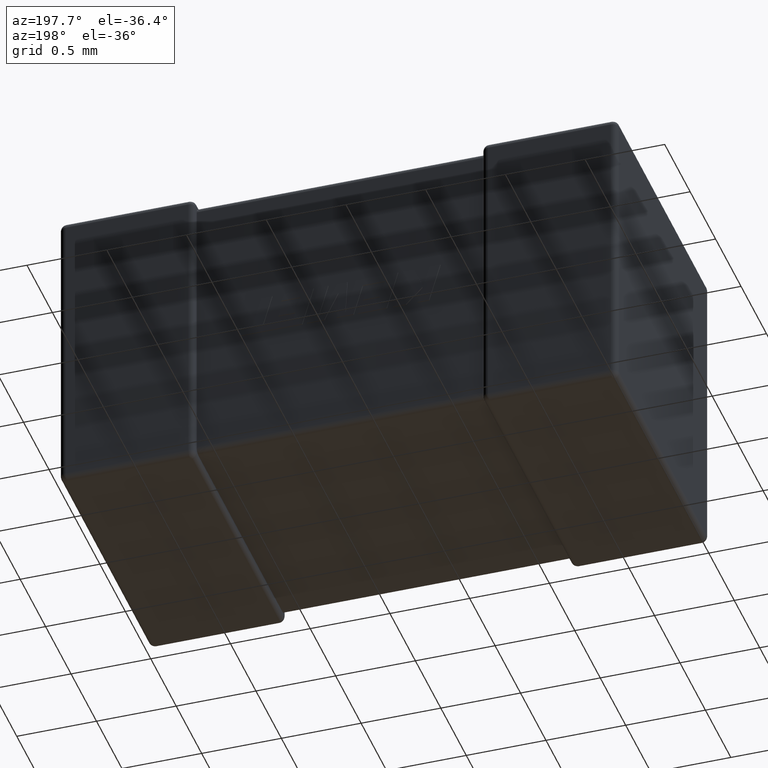
[diagram: clean part render]
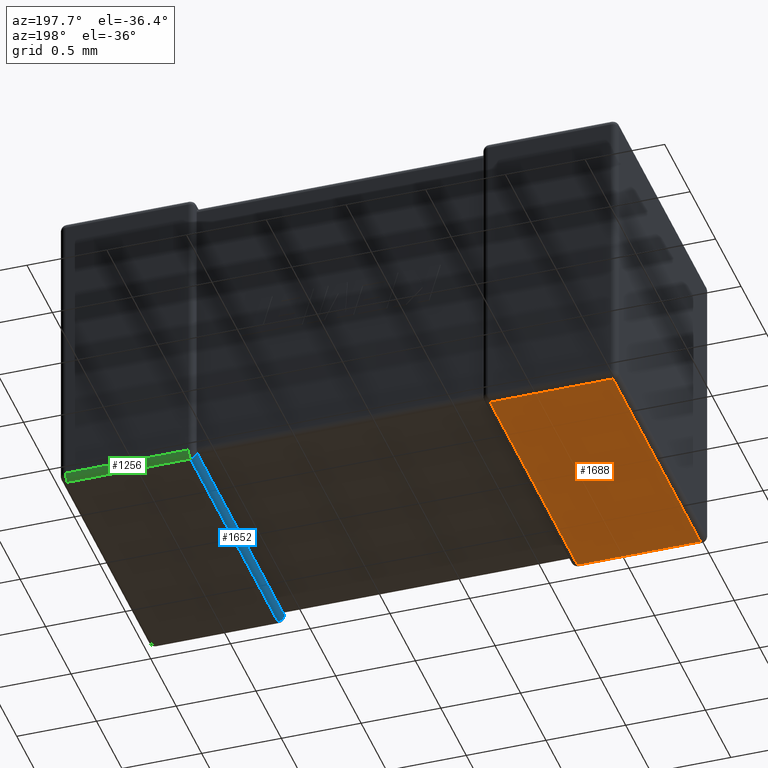
[diagram: same view with three faces highlighted in distinct colors, each labeled with its STEP entity id]
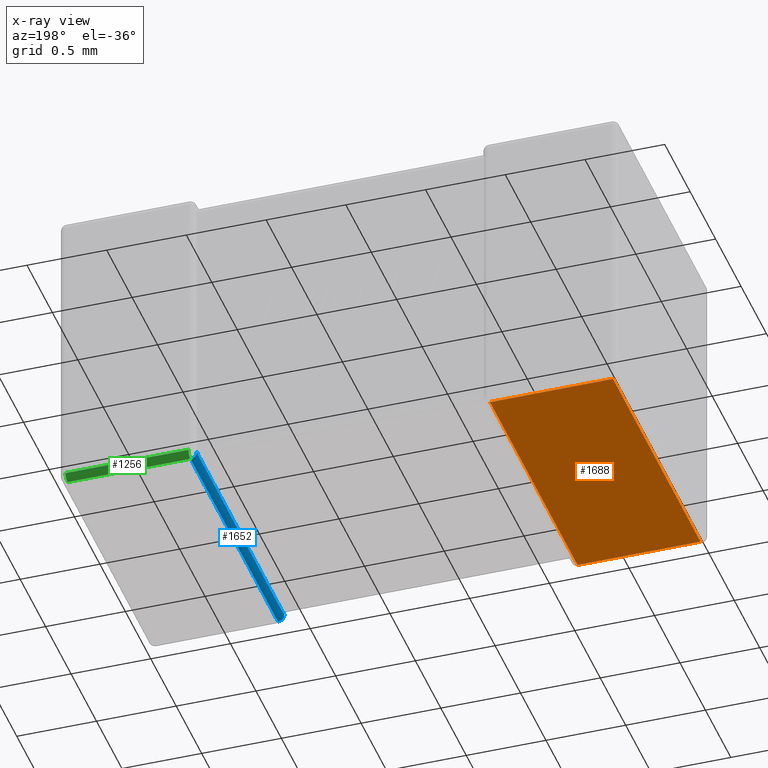
[diagram: x-ray of the same camera — body ghosted, the three highlighted faces saturated]
A machine part, auxiliary view with three faces highlighted in distinct colors.
The next image is the same camera in x-ray (body ghosted, the three faces saturated) — at least one of them is partly hidden behind the body in this view.
Their STEP definitions:

[orange] entity #1688 — the highlighted planar face has unit normal (0, 0, 1).
#38 = LINE ( 'NONE', #503, #444 ) ;
#44 = VERTEX_POINT ( 'NONE', #4340 ) ;
#287 = VERTEX_POINT ( 'NONE', #3320 ) ;
#444 = VECTOR ( 'NONE', #1570, 1000.000000000000000 ) ;
#447 = VERTEX_POINT ( 'NONE', #1333 ) ;
#503 = CARTESIAN_POINT ( 'NONE',  ( 0.03951999999999991600, 1.800000000000000000, -1.900000000000000100 ) ) ;
#564 = LINE ( 'NONE', #1921, #2812 ) ;
#692 = EDGE_CURVE ( 'NONE', #287, #447, #3251, .T. ) ;
#846 = DIRECTION ( 'NONE',  ( 1.000000000000000000, 0.0000000000000000000, -0.0000000000000000000 ) ) ;
#847 = DIRECTION ( 'NONE',  ( -5.486853099623009500E-015, -1.000000000000000000, 0.0000000000000000000 ) ) ;
#948 = ORIENTED_EDGE ( 'NONE', *, *, #4050, .T. ) ;
#1094 = CARTESIAN_POINT ( 'NONE',  ( 0.03951999999999991600, 1.760480000000000000, -1.900000000000000100 ) ) ;
#1296 = ORIENTED_EDGE ( 'NONE', *, *, #3716, .T. ) ;
#1333 = CARTESIAN_POINT ( 'NONE',  ( 0.03951999999999991600, 0.03952000000000000000, -1.900000000000000100 ) ) ;
#1570 = DIRECTION ( 'NONE',  ( 0.0000000000000000000, 1.000000000000000000, -0.0000000000000000000 ) ) ;
#1688 = ADVANCED_FACE ( 'NONE', ( #4101 ), #2255, .F. ) ;
#1921 = CARTESIAN_POINT ( 'NONE',  ( 3.500000000000000000, 1.760480000000000000, -1.900000000000000100 ) ) ;
#1951 = VECTOR ( 'NONE', #4026, 1000.000000000000000 ) ;
#1996 = EDGE_LOOP ( 'NONE', ( #948, #1296, #2239, #2167 ) ) ;
#2132 = VERTEX_POINT ( 'NONE', #1094 ) ;
#2167 = ORIENTED_EDGE ( 'NONE', *, *, #2211, .T. ) ;
#2207 = DIRECTION ( 'NONE',  ( 0.0000000000000000000, 0.0000000000000000000, 1.000000000000000000 ) ) ;
#2211 = EDGE_CURVE ( 'NONE', #447, #2132, #38, .T. ) ;
#2239 = ORIENTED_EDGE ( 'NONE', *, *, #692, .T. ) ;
#2255 = PLANE ( 'NONE',  #3602 ) ;
#2381 = DIRECTION ( 'NONE',  ( 1.000000000000000000, -0.0000000000000000000, -0.0000000000000000000 ) ) ;
#2812 = VECTOR ( 'NONE', #2381, 1000.000000000000000 ) ;
#3251 = LINE ( 'NONE', #3682, #1951 ) ;
#3320 = CARTESIAN_POINT ( 'NONE',  ( 0.8104799999999904300, 0.03952000000000000000, -1.900000000000000100 ) ) ;
#3572 = VECTOR ( 'NONE', #847, 1000.000000000000000 ) ;
#3602 = AXIS2_PLACEMENT_3D ( 'NONE', #3724, #2207, #846 ) ;
#3682 = CARTESIAN_POINT ( 'NONE',  ( 3.500000000000000000, 0.03952000000000000000, -1.900000000000000100 ) ) ;
#3716 = EDGE_CURVE ( 'NONE', #44, #287, #3983, .T. ) ;
#3724 = CARTESIAN_POINT ( 'NONE',  ( 3.500000000000000000, 0.0000000000000000000, -1.900000000000000100 ) ) ;
#3983 = LINE ( 'NONE', #4392, #3572 ) ;
#4026 = DIRECTION ( 'NONE',  ( -1.000000000000000000, -0.0000000000000000000, 0.0000000000000000000 ) ) ;
#4050 = EDGE_CURVE ( 'NONE', #2132, #44, #564, .T. ) ;
#4101 = FACE_OUTER_BOUND ( 'NONE', #1996, .T. ) ;
#4340 = CARTESIAN_POINT ( 'NONE',  ( 0.8104799999999998700, 1.760480000000000000, -1.900000000000000100 ) ) ;
#4392 = CARTESIAN_POINT ( 'NONE',  ( 0.8104799999999902100, 1.475700114849813200E-014, -1.900000000000000100 ) ) ;

[blue] entity #1652 — the highlighted cylindrical surface (edge-blend (fillet) strip) has radius 0.0395 mm, axis along (0, 1, 0).
#21 = LINE ( 'NONE', #365, #809 ) ;
#81 = CARTESIAN_POINT ( 'NONE',  ( 2.649980868571750300, 1.729787618139186500, -1.859730029434474700 ) ) ;
#113 = ORIENTED_EDGE ( 'NONE', *, *, #4445, .T. ) ;
#114 = CARTESIAN_POINT ( 'NONE',  ( 2.650060628212611600, 1.733928030680474100, -1.858291763690861400 ) ) ;
#121 = DIRECTION ( 'NONE',  ( 0.0000000000000000000, 0.0000000000000000000, 1.000000000000000000 ) ) ;
#249 = CARTESIAN_POINT ( 'NONE',  ( 2.649999999999999900, 0.04345027698197012600, -1.856549723018030100 ) ) ;
#365 = CARTESIAN_POINT ( 'NONE',  ( 2.650000000000000400, 0.0000000000000000000, -1.860480000000000400 ) ) ;
#383 = CARTESIAN_POINT ( 'NONE',  ( 2.689519999999999900, 1.760480000000000000, -1.900000000000000100 ) ) ;
#407 = CARTESIAN_POINT ( 'NONE',  ( 2.650000000000000400, 1.720959999999999600, -1.860480000000000400 ) ) ;
#411 = CARTESIAN_POINT ( 'NONE',  ( 2.650002967756881900, 0.07287186967079015100, -1.859995683268541800 ) ) ;
#473 = CARTESIAN_POINT ( 'NONE',  ( 2.651401832367206600, 1.747823300596617900, -1.849986419388551400 ) ) ;
#487 = CARTESIAN_POINT ( 'NONE',  ( 2.650000000000000400, 1.725343832337306300, -1.860480000000000400 ) ) ;
#500 = CIRCLE ( 'NONE', #1648, 0.03951999999999991600 ) ;
#582 = CARTESIAN_POINT ( 'NONE',  ( 2.650000000000000400, 1.760480000000000000, -1.860480000000000400 ) ) ;
#625 = AXIS2_PLACEMENT_3D ( 'NONE', #1802, #1816, #121 ) ;
#809 = VECTOR ( 'NONE', #2700, 1000.000000000000000 ) ;
#819 = VERTEX_POINT ( 'NONE', #878 ) ;
#878 = CARTESIAN_POINT ( 'NONE',  ( 2.649999999999999900, 0.03951999999999991600, -1.860480000000000400 ) ) ;
#929 = CARTESIAN_POINT ( 'NONE',  ( 2.651733143372243500, 0.05109514000750755400, -1.848904859992492700 ) ) ;
#954 = VERTEX_POINT ( 'NONE', #3077 ) ;
#983 = AXIS2_PLACEMENT_3D ( 'NONE', #3082, #1959, #2664 ) ;
#1073 = EDGE_CURVE ( 'NONE', #2394, #1455, #1824, .T. ) ;
#1206 = CARTESIAN_POINT ( 'NONE',  ( 2.651733143372243500, 1.748904859992492600, -1.848904859992492700 ) ) ;
#1291 = CARTESIAN_POINT ( 'NONE',  ( 2.649999999999999900, 1.756549723018030000, -1.856549723018030100 ) ) ;
#1312 = DIRECTION ( 'NONE',  ( 0.0000000000000000000, 1.000000000000000000, 0.0000000000000000000 ) ) ;
#1445 = EDGE_CURVE ( 'NONE', #1955, #3532, #1963, .T. ) ;
#1455 = VERTEX_POINT ( 'NONE', #4617 ) ;
#1467 = CARTESIAN_POINT ( 'NONE',  ( 2.650855364892457100, 0.05396063360370658600, -1.851770353588691800 ) ) ;
#1493 = VECTOR ( 'NONE', #3858, 1000.000000000000000 ) ;
#1633 = CARTESIAN_POINT ( 'NONE',  ( 2.689519999999999900, 0.03952000000000000000, -1.900000000000000100 ) ) ;
#1646 = CARTESIAN_POINT ( 'NONE',  ( 2.649999999999999900, 0.03951999999999991600, -1.860480000000000400 ) ) ;
#1648 = AXIS2_PLACEMENT_3D ( 'NONE', #1986, #1312, #1657 ) ;
#1652 = ADVANCED_FACE ( 'NONE', ( #2377 ), #2437, .T. ) ;
#1657 = DIRECTION ( 'NONE',  ( 0.0000000000000000000, 0.0000000000000000000, -1.000000000000000000 ) ) ;
#1792 = B_SPLINE_CURVE_WITH_KNOTS ( 'NONE', 3,
 ( #407, #487, #81, #114, #2218, #3369, #2637, #4072, #473, #1206 ),
 .UNSPECIFIED., .F., .F.,
 ( 4, 3, 3, 4 ),
 ( 4.336808689942017300E-019, 1.315149701192693200E-005, 2.633015284244883800E-005, 3.096473829575132700E-005 ),
 .UNSPECIFIED. ) ;
#1801 = CARTESIAN_POINT ( 'NONE',  ( 2.650442899009865600, 0.05739494176754507400, -1.854283741501644200 ) ) ;
#1802 = CARTESIAN_POINT ( 'NONE',  ( 2.689519999999999900, 0.0000000000000000000, -1.860480000000000400 ) ) ;
#1816 = DIRECTION ( 'NONE',  ( 0.0000000000000000000, 1.000000000000000000, 0.0000000000000000000 ) ) ;
#1824 = B_SPLINE_CURVE_WITH_KNOTS ( 'NONE', 3,
 ( #3968, #1467, #1801, #4006, #2540, #3583, #411, #4672, #3599, #3954 ),
 .UNSPECIFIED., .F., .F.,
 ( 4, 3, 3, 4 ),
 ( 0.0000000000000000000, 1.243918885754308100E-005, 2.481276825204882900E-005, 3.092983972412733100E-005 ),
 .UNSPECIFIED. ) ;
#1831 = VERTEX_POINT ( 'NONE', #1633 ) ;
#1834 = EDGE_CURVE ( 'NONE', #819, #2394, #4614, .T. ) ;
#1843 = ORIENTED_EDGE ( 'NONE', *, *, #1445, .F. ) ;
#1955 = VERTEX_POINT ( 'NONE', #582 ) ;
#1959 = DIRECTION ( 'NONE',  ( 0.0000000000000000000, 1.000000000000000000, 0.0000000000000000000 ) ) ;
#1963 =( BOUNDED_CURVE ( )  B_SPLINE_CURVE ( 3, ( #3905, #1291, #2480, #4179 ),
 .UNSPECIFIED., .F., .F. ) 
 B_SPLINE_CURVE_WITH_KNOTS ( ( 4, 4 ),
 ( 1.570796326794896600, 1.868047688116099400 ),
 .UNSPECIFIED. ) 
 CURVE ( )  GEOMETRIC_REPRESENTATION_ITEM ( )  RATIONAL_B_SPLINE_CURVE ( ( 1.000000000000000000, 0.9926503465430340800, 0.9926503465430340800, 1.000000000000000000 ) ) 
 REPRESENTATION_ITEM ( '' )  );
#1986 = CARTESIAN_POINT ( 'NONE',  ( 2.689519999999999900, 0.03952000000000000000, -1.860480000000000400 ) ) ;
#2006 = CARTESIAN_POINT ( 'NONE',  ( 2.650581991896165900, 0.04733722470322925000, -1.852662775296771300 ) ) ;
#2053 = ORIENTED_EDGE ( 'NONE', *, *, #1073, .T. ) ;
#2122 = CARTESIAN_POINT ( 'NONE',  ( 2.651733143372243500, 1.748904859992492600, -1.848904859992492700 ) ) ;
#2125 = ORIENTED_EDGE ( 'NONE', *, *, #2181, .T. ) ;
#2181 = EDGE_CURVE ( 'NONE', #954, #3532, #1792, .T. ) ;
#2218 = CARTESIAN_POINT ( 'NONE',  ( 2.650140473378203700, 1.738072882906634500, -1.856851955722505600 ) ) ;
#2274 = EDGE_CURVE ( 'NONE', #3528, #1955, #2447, .T. ) ;
#2330 = CARTESIAN_POINT ( 'NONE',  ( 2.651733143372243500, 0.05109514000750755400, -1.848904859992492700 ) ) ;
#2377 = FACE_OUTER_BOUND ( 'NONE', #2632, .T. ) ;
#2394 = VERTEX_POINT ( 'NONE', #2330 ) ;
#2437 = CYLINDRICAL_SURFACE ( 'NONE', #625, 0.03951999999999991600 ) ;
#2447 = CIRCLE ( 'NONE', #983, 0.03951999999999991600 ) ;
#2480 = CARTESIAN_POINT ( 'NONE',  ( 2.650581991896166400, 1.752662775296770700, -1.852662775296771000 ) ) ;
#2528 = ORIENTED_EDGE ( 'NONE', *, *, #4470, .F. ) ;
#2540 = CARTESIAN_POINT ( 'NONE',  ( 2.650030283367744500, 0.06476057441571936300, -1.858040471883658100 ) ) ;
#2632 = EDGE_LOOP ( 'NONE', ( #113, #4372, #2053, #3357, #2125, #1843, #3953, #2528 ) ) ;
#2637 = CARTESIAN_POINT ( 'NONE',  ( 2.650925292708250900, 1.745448685275966700, -1.851978296108179000 ) ) ;
#2664 = DIRECTION ( 'NONE',  ( 0.0000000000000000000, 0.0000000000000000000, 1.000000000000000000 ) ) ;
#2700 = DIRECTION ( 'NONE',  ( -0.0000000000000000000, 1.000000000000000000, -0.0000000000000000000 ) ) ;
#2760 = CARTESIAN_POINT ( 'NONE',  ( 2.689519999999999900, 0.0000000000000000000, -1.900000000000000100 ) ) ;
#2896 = EDGE_CURVE ( 'NONE', #1455, #954, #21, .T. ) ;
#3077 = CARTESIAN_POINT ( 'NONE',  ( 2.650000000000000400, 1.720959999999999600, -1.860480000000000400 ) ) ;
#3082 = CARTESIAN_POINT ( 'NONE',  ( 2.689519999999999900, 1.760480000000000000, -1.860480000000000400 ) ) ;
#3185 = LINE ( 'NONE', #2760, #1493 ) ;
#3357 = ORIENTED_EDGE ( 'NONE', *, *, #2896, .T. ) ;
#3369 = CARTESIAN_POINT ( 'NONE',  ( 2.650331769745486500, 1.742035877948573400, -1.854672678941348600 ) ) ;
#3528 = VERTEX_POINT ( 'NONE', #383 ) ;
#3532 = VERTEX_POINT ( 'NONE', #2122 ) ;
#3583 = CARTESIAN_POINT ( 'NONE',  ( 2.650010872113068800, 0.06879027762544633100, -1.859350740242614600 ) ) ;
#3599 = CARTESIAN_POINT ( 'NONE',  ( 2.649999999999937300, 0.07697762803058405500, -1.860480000000003900 ) ) ;
#3858 = DIRECTION ( 'NONE',  ( 0.0000000000000000000, 1.000000000000000000, 0.0000000000000000000 ) ) ;
#3905 = CARTESIAN_POINT ( 'NONE',  ( 2.650000000000000400, 1.760480000000000000, -1.860480000000000400 ) ) ;
#3953 = ORIENTED_EDGE ( 'NONE', *, *, #2274, .F. ) ;
#3954 = CARTESIAN_POINT ( 'NONE',  ( 2.650000000000000400, 0.07903999999999988800, -1.860480000000000400 ) ) ;
#3968 = CARTESIAN_POINT ( 'NONE',  ( 2.651733143372243500, 0.05109514000750755400, -1.848904859992492700 ) ) ;
#4006 = CARTESIAN_POINT ( 'NONE',  ( 2.650236238407553300, 0.06108405561611041800, -1.856165318650492300 ) ) ;
#4072 = CARTESIAN_POINT ( 'NONE',  ( 2.651136953244996900, 1.746665751297073400, -1.851017432666583100 ) ) ;
#4179 = CARTESIAN_POINT ( 'NONE',  ( 2.651733143372243500, 1.748904859992492600, -1.848904859992492700 ) ) ;
#4372 = ORIENTED_EDGE ( 'NONE', *, *, #1834, .T. ) ;
#4445 = EDGE_CURVE ( 'NONE', #1831, #819, #500, .T. ) ;
#4470 = EDGE_CURVE ( 'NONE', #1831, #3528, #3185, .T. ) ;
#4614 =( BOUNDED_CURVE ( )  B_SPLINE_CURVE ( 3, ( #1646, #249, #2006, #929 ),
 .UNSPECIFIED., .F., .F. ) 
 B_SPLINE_CURVE_WITH_KNOTS ( ( 4, 4 ),
 ( 1.570796326794895700, 1.868047688116099700 ),
 .UNSPECIFIED. ) 
 CURVE ( )  GEOMETRIC_REPRESENTATION_ITEM ( )  RATIONAL_B_SPLINE_CURVE ( ( 1.000000000000000000, 0.9926503465430338600, 0.9926503465430338600, 1.000000000000000000 ) ) 
 REPRESENTATION_ITEM ( '' )  );
#4617 = CARTESIAN_POINT ( 'NONE',  ( 2.650000000000000400, 0.07903999999999988800, -1.860480000000000400 ) ) ;
#4672 = CARTESIAN_POINT ( 'NONE',  ( 2.649999022748232000, 0.07490896359017601400, -1.860317569802489900 ) ) ;

[green] entity #1256 — the highlighted cylindrical surface (edge-blend (fillet) strip) has radius 0.0395 mm, axis along (-1, 0, 0).
#7 = CARTESIAN_POINT ( 'NONE',  ( 3.500000000000000000, 1.760480000000000000, -1.900000000000000100 ) ) ;
#72 = CARTESIAN_POINT ( 'NONE',  ( 3.500000000000000000, 1.760480000000000000, -1.860480000000000400 ) ) ;
#145 = FACE_OUTER_BOUND ( 'NONE', #4339, .T. ) ;
#264 = AXIS2_PLACEMENT_3D ( 'NONE', #3661, #3693, #4082 ) ;
#357 = CARTESIAN_POINT ( 'NONE',  ( 3.500000000000000000, 1.800000000000000000, -1.860480000000000400 ) ) ;
#383 = CARTESIAN_POINT ( 'NONE',  ( 2.689519999999999900, 1.760480000000000000, -1.900000000000000100 ) ) ;
#574 = VERTEX_POINT ( 'NONE', #1440 ) ;
#779 = CIRCLE ( 'NONE', #2067, 0.03951999999999991600 ) ;
#1040 = DIRECTION ( 'NONE',  ( 0.0000000000000000000, 0.0000000000000000000, 1.000000000000000000 ) ) ;
#1103 = DIRECTION ( 'NONE',  ( 1.000000000000000000, -0.0000000000000000000, -0.0000000000000000000 ) ) ;
#1138 = EDGE_CURVE ( 'NONE', #3528, #4263, #1945, .T. ) ;
#1256 = ADVANCED_FACE ( 'NONE', ( #145 ), #2550, .T. ) ;
#1366 = VECTOR ( 'NONE', #2527, 1000.000000000000000 ) ;
#1392 = ORIENTED_EDGE ( 'NONE', *, *, #1138, .F. ) ;
#1414 = CARTESIAN_POINT ( 'NONE',  ( 2.689519999999999900, 1.760480000000000000, -1.860480000000000400 ) ) ;
#1440 = CARTESIAN_POINT ( 'NONE',  ( 3.460480000000000000, 1.800000000000000000, -1.860480000000000400 ) ) ;
#1499 = ORIENTED_EDGE ( 'NONE', *, *, #1747, .F. ) ;
#1636 = ORIENTED_EDGE ( 'NONE', *, *, #3932, .T. ) ;
#1694 = CARTESIAN_POINT ( 'NONE',  ( 3.460480000000000000, 1.760480000000000000, -1.900000000000000100 ) ) ;
#1747 = EDGE_CURVE ( 'NONE', #4263, #574, #4361, .T. ) ;
#1945 = LINE ( 'NONE', #7, #3068 ) ;
#2067 = AXIS2_PLACEMENT_3D ( 'NONE', #1414, #2870, #1040 ) ;
#2128 = EDGE_CURVE ( 'NONE', #574, #3149, #4258, .T. ) ;
#2527 = DIRECTION ( 'NONE',  ( -1.000000000000000000, 0.0000000000000000000, 0.0000000000000000000 ) ) ;
#2550 = CYLINDRICAL_SURFACE ( 'NONE', #2874, 0.03951999999999991600 ) ;
#2870 = DIRECTION ( 'NONE',  ( 1.000000000000000000, -0.0000000000000000000, -0.0000000000000000000 ) ) ;
#2874 = AXIS2_PLACEMENT_3D ( 'NONE', #72, #4407, #3310 ) ;
#3068 = VECTOR ( 'NONE', #1103, 1000.000000000000000 ) ;
#3149 = VERTEX_POINT ( 'NONE', #4031 ) ;
#3310 = DIRECTION ( 'NONE',  ( 0.0000000000000000000, 0.0000000000000000000, 1.000000000000000000 ) ) ;
#3528 = VERTEX_POINT ( 'NONE', #383 ) ;
#3661 = CARTESIAN_POINT ( 'NONE',  ( 3.460480000000000000, 1.760480000000000000, -1.860480000000000400 ) ) ;
#3693 = DIRECTION ( 'NONE',  ( 1.000000000000000000, -0.0000000000000000000, 0.0000000000000000000 ) ) ;
#3932 = EDGE_CURVE ( 'NONE', #3528, #3149, #779, .T. ) ;
#4031 = CARTESIAN_POINT ( 'NONE',  ( 2.689519999999999900, 1.800000000000000000, -1.860480000000000400 ) ) ;
#4082 = DIRECTION ( 'NONE',  ( 0.0000000000000000000, 0.0000000000000000000, -1.000000000000000000 ) ) ;
#4258 = LINE ( 'NONE', #357, #1366 ) ;
#4263 = VERTEX_POINT ( 'NONE', #1694 ) ;
#4339 = EDGE_LOOP ( 'NONE', ( #1636, #4569, #1499, #1392 ) ) ;
#4361 = CIRCLE ( 'NONE', #264, 0.03951999999999991600 ) ;
#4407 = DIRECTION ( 'NONE',  ( -1.000000000000000000, 0.0000000000000000000, 0.0000000000000000000 ) ) ;
#4569 = ORIENTED_EDGE ( 'NONE', *, *, #2128, .F. ) ;